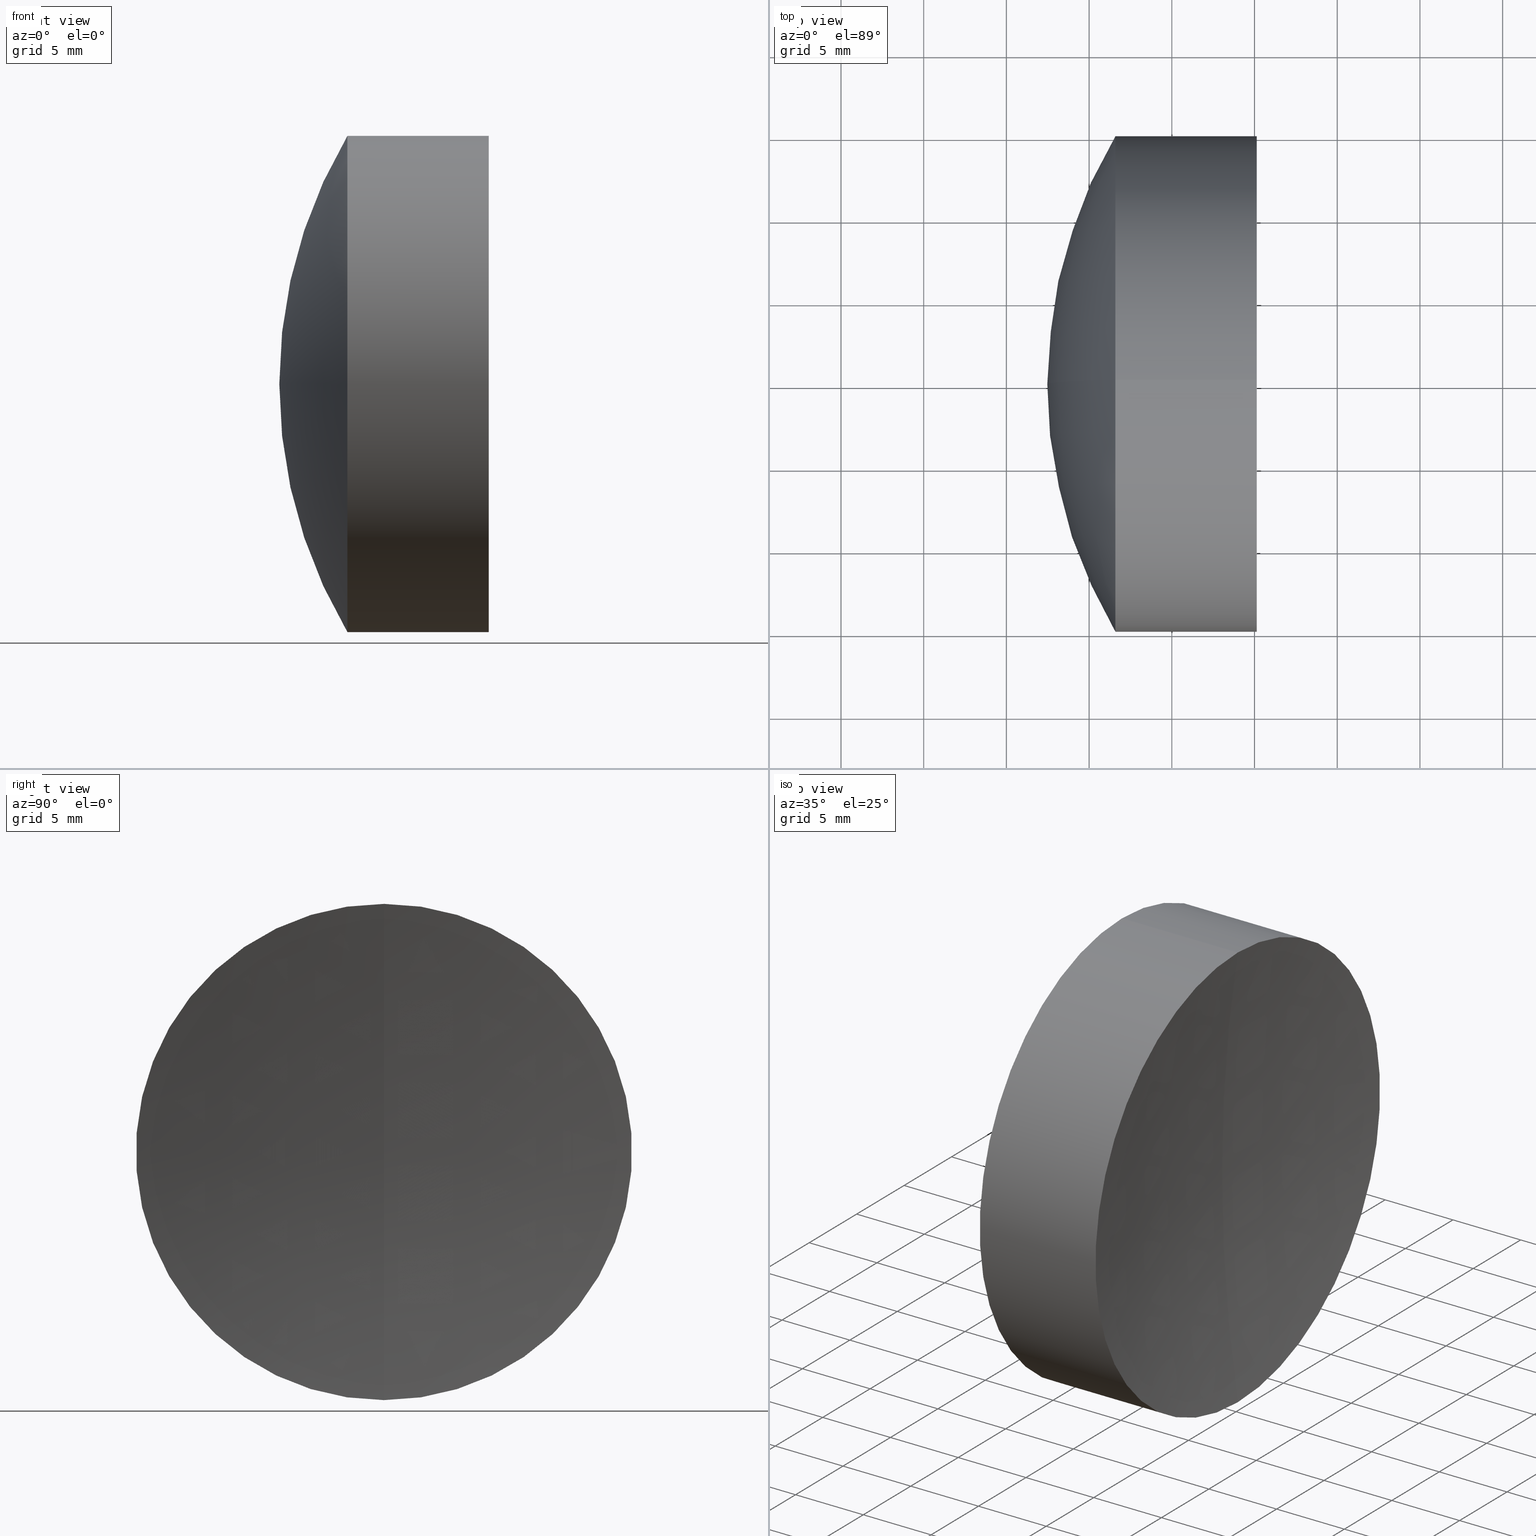
[diagram: canonical four-view strip — front | top / right | iso, engineering-drawing reading convention]
A machine part, canonical four-view strip (front | top / right | iso — engineering-drawing reading convention). The complete STEP part file that produces these views, byte-faithful:
ISO-10303-21;
HEADER;
FILE_DESCRIPTION (( 'STEP AP214' ),
    '1' );
FILE_NAME ('145174.STEP',
    '2019-06-12T02:23:38',
    ( 'user' ),
    ( '΢���й�' ),
    'SwSTEP 2.0',
    'SolidWorks 2016',
    '' );
FILE_SCHEMA (( 'AUTOMOTIVE_DESIGN' ));
ENDSEC;

DATA;
#1 =( GEOMETRIC_REPRESENTATION_CONTEXT ( 3 ) GLOBAL_UNCERTAINTY_ASSIGNED_CONTEXT ( ( #223 ) ) GLOBAL_UNIT_ASSIGNED_CONTEXT ( ( #302, #163, #98 ) ) REPRESENTATION_CONTEXT ( 'NONE', 'WORKASPACE' ) );
#2 = FILL_AREA_STYLE ('',( #100 ) ) ;
#3 = CARTESIAN_POINT ( 'NONE',  ( 68.06296674873206600, 0.0000000000000000000, 0.0000000000000000000 ) ) ;
#4 = ORIENTED_EDGE ( 'NONE', *, *, #94, .F. ) ;
#5 =( NAMED_UNIT ( * ) PLANE_ANGLE_UNIT ( ) SI_UNIT ( $, .RADIAN. ) );
#6 = EDGE_CURVE ( 'NONE', #261, #341, #16, .T. ) ;
#7 = ADVANCED_BREP_SHAPE_REPRESENTATION ( '145174', ( #316, #32, #246 ), #138 ) ;
#8 = ORIENTED_EDGE ( 'NONE', *, *, #79, .T. ) ;
#9 = CARTESIAN_POINT ( 'NONE',  ( 201.6929667487320900, 0.0000000000000000000, 0.0000000000000000000 ) ) ;
#10 = DIRECTION ( 'NONE',  ( 0.0000000000000000000, 1.224646799147353200E-016, -1.000000000000000000 ) ) ;
#11 = CARTESIAN_POINT ( 'NONE',  ( 105.1310777862640600, 0.0000000000000000000, -14.99999999999993600 ) ) ;
#12 = ORIENTED_EDGE ( 'NONE', *, *, #174, .T. ) ;
#13 = ORIENTED_EDGE ( 'NONE', *, *, #81, .T. ) ;
#14 = AXIS2_PLACEMENT_3D ( 'NONE', #9, #147, #10 ) ;
#15 =( NAMED_UNIT ( * ) SI_UNIT ( $, .STERADIAN. ) SOLID_ANGLE_UNIT ( ) );
#16 = LINE ( 'NONE', #304, #155 ) ;
#17 = CARTESIAN_POINT ( 'NONE',  ( 201.6929667487320900, 0.0000000000000000000, 0.0000000000000000000 ) ) ;
#18 = AXIS2_PLACEMENT_3D ( 'NONE', #256, #271, #301 ) ;
#19 = ORIENTED_EDGE ( 'NONE', *, *, #24, .T. ) ;
#20 = FACE_OUTER_BOUND ( 'NONE', #101, .T. ) ;
#21 = DIRECTION ( 'NONE',  ( -1.000000000000000000, -0.0000000000000000000, -0.0000000000000000000 ) ) ;
#22 = DIRECTION ( 'NONE',  ( 0.0000000000000000000, 0.0000000000000000000, 1.000000000000000000 ) ) ;
#23 = AXIS2_PLACEMENT_3D ( 'NONE', #227, #240, #153 ) ;
#24 = EDGE_CURVE ( 'NONE', #192, #129, #82, .T. ) ;
#25 = ADVANCED_FACE ( 'NONE', ( #293 ), #228, .F. ) ;
#26 = AXIS2_PLACEMENT_3D ( 'NONE', #3, #198, #270 ) ;
#27 = SURFACE_STYLE_FILL_AREA ( #28 ) ;
#28 = FILL_AREA_STYLE ('',( #222 ) ) ;
#29 = CIRCLE ( 'NONE', #290, 33.91000000000001100 ) ;
#30 = ORIENTED_EDGE ( 'NONE', *, *, #65, .F. ) ;
#31 =( NAMED_UNIT ( * ) PLANE_ANGLE_UNIT ( ) SI_UNIT ( $, .RADIAN. ) );
#32 = MANIFOLD_SOLID_BREP ( '��ת2', #115 ) ;
#33 = CARTESIAN_POINT ( 'NONE',  ( -0.8160621761658039000, 0.0000000000000000000, 0.0000000000000000000 ) ) ;
#34 = AXIS2_PLACEMENT_3D ( 'NONE', #73, #176, #180 ) ;
#35 = DIRECTION ( 'NONE',  ( 0.0000000000000000000, 1.000000000000000000, -0.0000000000000000000 ) ) ;
#36 = DIRECTION ( 'NONE',  ( 0.0000000000000000000, 0.0000000000000000000, 1.000000000000000000 ) ) ;
#37 = ORIENTED_EDGE ( 'NONE', *, *, #181, .T. ) ;
#38 = DIRECTION ( 'NONE',  ( -1.000000000000000000, -0.0000000000000000000, -0.0000000000000000000 ) ) ;
#39 = ADVANCED_FACE ( 'NONE', ( #158 ), #166, .T. ) ;
#40 = SPHERICAL_SURFACE ( 'NONE', #285, 29.38000000000000300 ) ;
#41 = AXIS2_PLACEMENT_3D ( 'NONE', #33, #38, #22 ) ;
#42 = ORIENTED_EDGE ( 'NONE', *, *, #262, .F. ) ;
#43 = DIRECTION ( 'NONE',  ( -1.000000000000000000, -0.0000000000000000000, -0.0000000000000000000 ) ) ;
#44 = DIRECTION ( 'NONE',  ( 0.0000000000000000000, 0.0000000000000000000, 1.000000000000000000 ) ) ;
#45 = ORIENTED_EDGE ( 'NONE', *, *, #322, .T. ) ;
#46 = AXIS2_PLACEMENT_3D ( 'NONE', #226, #252, #309 ) ;
#47 = AXIS2_PLACEMENT_3D ( 'NONE', #272, #86, #154 ) ;
#48 = CLOSED_SHELL ( 'NONE', ( #337, #204, #244, #187, #332, #52 ) ) ;
#49 = ORIENTED_EDGE ( 'NONE', *, *, #24, .F. ) ;
#50 = DIRECTION ( 'NONE',  ( 0.0000000000000000000, 0.0000000000000000000, 1.000000000000000000 ) ) ;
#51 = AXIS2_PLACEMENT_3D ( 'NONE', #308, #58, #50 ) ;
#52 = ADVANCED_FACE ( 'NONE', ( #92 ), #105, .T. ) ;
#53 = CIRCLE ( 'NONE', #342, 14.99999999999999600 ) ;
#54 = CARTESIAN_POINT ( 'NONE',  ( -0.5519199926577972300, 0.0000000000000000000, 15.00000000000000000 ) ) ;
#55 = EDGE_LOOP ( 'NONE', ( #215, #49, #37 ) ) ;
#56 = DIRECTION ( 'NONE',  ( 0.0000000000000000000, -1.000000000000000000, 0.0000000000000000000 ) ) ;
#57 = AXIS2_PLACEMENT_3D ( 'NONE', #132, #232, #277 ) ;
#58 = DIRECTION ( 'NONE',  ( -1.000000000000000000, -0.0000000000000000000, -0.0000000000000000000 ) ) ;
#59 = CARTESIAN_POINT ( 'NONE',  ( 96.59065489886367600, 0.0000000000000000000, 14.99999999999999300 ) ) ;
#60 = CARTESIAN_POINT ( 'NONE',  ( 98.47493971991563900, 0.0000000000000000000, -15.00000000000000700 ) ) ;
#61 = ORIENTED_EDGE ( 'NONE', *, *, #300, .F. ) ;
#62 = CARTESIAN_POINT ( 'NONE',  ( 121.8529667487320600, 0.0000000000000000000, -2.769782849418513800E-015 ) ) ;
#63 = SURFACE_STYLE_USAGE ( .BOTH. , #194 ) ;
#64 = CARTESIAN_POINT ( 'NONE',  ( 101.9729667487320800, 0.0000000000000000000, -2.076388647954338200E-015 ) ) ;
#65 = EDGE_CURVE ( 'NONE', #261, #191, #283, .T. ) ;
#66 = FACE_OUTER_BOUND ( 'NONE', #183, .T. ) ;
#67 = DIRECTION ( 'NONE',  ( 0.0000000000000000000, 0.0000000000000000000, 1.000000000000000000 ) ) ;
#68 = DIRECTION ( 'NONE',  ( 0.0000000000000000000, 1.000000000000000000, 0.0000000000000000000 ) ) ;
#69 = CIRCLE ( 'NONE', #14, 97.71999999999999900 ) ;
#70 = DIRECTION ( 'NONE',  ( 0.0000000000000000000, 0.0000000000000000000, 1.000000000000000000 ) ) ;
#71 = ORIENTED_EDGE ( 'NONE', *, *, #255, .T. ) ;
#72 = STYLED_ITEM ( 'NONE', ( #344 ), #316 ) ;
#73 = CARTESIAN_POINT ( 'NONE',  ( 121.8529667487320600, 0.0000000000000000000, -2.769782849418513800E-015 ) ) ;
#74 = SPHERICAL_SURFACE ( 'NONE', #320, 97.71999999999999900 ) ;
#75 = ORIENTED_EDGE ( 'NONE', *, *, #6, .T. ) ;
#76 = MECHANICAL_DESIGN_GEOMETRIC_PRESENTATION_REPRESENTATION (  '', ( #72 ), #116 ) ;
#77 = DIRECTION ( 'NONE',  ( -0.0000000000000000000, -1.000000000000000000, -0.0000000000000000000 ) ) ;
#78 = DIRECTION ( 'NONE',  ( 0.0000000000000000000, 1.000000000000000000, 0.0000000000000000000 ) ) ;
#79 = EDGE_CURVE ( 'NONE', #143, #149, #29, .T. ) ;
#80 = ADVANCED_FACE ( 'NONE', ( #20 ), #137, .F. ) ;
#81 = EDGE_CURVE ( 'NONE', #179, #341, #53, .T. ) ;
#82 = CIRCLE ( 'NONE', #197, 15.00000000000000200 ) ;
#83 = CYLINDRICAL_SURFACE ( 'NONE', #41, 14.99999999999999800 ) ;
#84 = DIRECTION ( 'NONE',  ( 1.000000000000000000, 0.0000000000000000000, 0.0000000000000000000 ) ) ;
#85 = PRESENTATION_LAYER_ASSIGNMENT (  '', '', ( #157 ) ) ;
#86 = DIRECTION ( 'NONE',  ( -1.000000000000000000, -0.0000000000000000000, -0.0000000000000000000 ) ) ;
#87 = CIRCLE ( 'NONE', #108, 33.91000000000000400 ) ;
#88 = EDGE_LOOP ( 'NONE', ( #241, #287, #263, #284 ) ) ;
#89 = PRESENTATION_LAYER_ASSIGNMENT (  '', '', ( #72 ) ) ;
#90 = CARTESIAN_POINT ( 'NONE',  ( 201.6929667487320900, 0.0000000000000000000, 0.0000000000000000000 ) ) ;
#91 = CARTESIAN_POINT ( 'NONE',  ( 68.06296674873206600, 0.0000000000000000000, 0.0000000000000000000 ) ) ;
#92 = FACE_OUTER_BOUND ( 'NONE', #303, .T. ) ;
#93 = CARTESIAN_POINT ( 'NONE',  ( 105.1310777862640600, 0.0000000000000000000, 0.0000000000000000000 ) ) ;
#94 = EDGE_CURVE ( 'NONE', #192, #230, #219, .T. ) ;
#95 = ORIENTED_EDGE ( 'NONE', *, *, #279, .T. ) ;
#96 = ORIENTED_EDGE ( 'NONE', *, *, #94, .T. ) ;
#97 =( NAMED_UNIT ( * ) PLANE_ANGLE_UNIT ( ) SI_UNIT ( $, .RADIAN. ) );
#98 =( NAMED_UNIT ( * ) SI_UNIT ( $, .STERADIAN. ) SOLID_ANGLE_UNIT ( ) );
#99 = SURFACE_STYLE_FILL_AREA ( #182 ) ;
#100 = FILL_AREA_STYLE_COLOUR ( '', #286 ) ;
#101 = EDGE_LOOP ( 'NONE', ( #128, #12, #71 ) ) ;
#102 = EDGE_CURVE ( 'NONE', #341, #179, #326, .T. ) ;
#103 = EDGE_CURVE ( 'NONE', #179, #119, #268, .T. ) ;
#104 = CYLINDRICAL_SURFACE ( 'NONE', #130, 14.99999999999999800 ) ;
#105 = SPHERICAL_SURFACE ( 'NONE', #324, 33.91000000000000400 ) ;
#106 = DIRECTION ( 'NONE',  ( -1.000000000000000000, -0.0000000000000000000, -0.0000000000000000000 ) ) ;
#107 = SURFACE_STYLE_USAGE ( .BOTH. , #243 ) ;
#108 = AXIS2_PLACEMENT_3D ( 'NONE', #190, #253, #323 ) ;
#109 = ADVANCED_FACE ( 'NONE', ( #66 ), #74, .F. ) ;
#110 = CARTESIAN_POINT ( 'NONE',  ( 96.59065489886367600, 1.836970198721028800E-015, -14.99999999999999600 ) ) ;
#111 = CARTESIAN_POINT ( 'NONE',  ( 68.06296674873206600, 0.0000000000000000000, 0.0000000000000000000 ) ) ;
#112 = APPLICATION_CONTEXT ( 'automotive_design' ) ;
#113 = DIRECTION ( 'NONE',  ( 0.0000000000000000000, 0.0000000000000000000, -1.000000000000000000 ) ) ;
#114 = ORIENTED_EDGE ( 'NONE', *, *, #229, .F. ) ;
#115 = CLOSED_SHELL ( 'NONE', ( #39, #109, #265, #80, #25, #161 ) ) ;
#116 =( GEOMETRIC_REPRESENTATION_CONTEXT ( 3 ) GLOBAL_UNCERTAINTY_ASSIGNED_CONTEXT ( ( #319 ) ) GLOBAL_UNIT_ASSIGNED_CONTEXT ( ( #247, #97, #238 ) ) REPRESENTATION_CONTEXT ( 'NONE', 'WORKASPACE' ) );
#117 = DIRECTION ( 'NONE',  ( 0.0000000000000000000, 0.0000000000000000000, 1.000000000000000000 ) ) ;
#118 = DIRECTION ( 'NONE',  ( 0.0000000000000000000, 1.224646799147353200E-016, -1.000000000000000000 ) ) ;
#119 = VERTEX_POINT ( 'NONE', #214 ) ;
#120 = CARTESIAN_POINT ( 'NONE',  ( 68.06296674873206600, 0.0000000000000000000, 0.0000000000000000000 ) ) ;
#121 = AXIS2_PLACEMENT_3D ( 'NONE', #206, #217, #218 ) ;
#122 = VERTEX_POINT ( 'NONE', #199 ) ;
#123 = DIRECTION ( 'NONE',  ( -1.000000000000000000, -0.0000000000000000000, -0.0000000000000000000 ) ) ;
#124 = FACE_OUTER_BOUND ( 'NONE', #239, .T. ) ;
#125 = DIRECTION ( 'NONE',  ( -0.0000000000000000000, 1.000000000000000000, 1.224646799147353200E-016 ) ) ;
#126 = DIRECTION ( 'NONE',  ( 0.0000000000000000000, -1.224646799147353200E-016, 1.000000000000000000 ) ) ;
#127 = AXIS2_PLACEMENT_3D ( 'NONE', #141, #68, #139 ) ;
#128 = ORIENTED_EDGE ( 'NONE', *, *, #79, .F. ) ;
#129 = VERTEX_POINT ( 'NONE', #146 ) ;
#130 = AXIS2_PLACEMENT_3D ( 'NONE', #193, #162, #44 ) ;
#131 = SPHERICAL_SURFACE ( 'NONE', #46, 33.91000000000001100 ) ;
#132 = CARTESIAN_POINT ( 'NONE',  ( 121.8529667487320600, 0.0000000000000000000, -2.769782849418513800E-015 ) ) ;
#133 = CYLINDRICAL_SURFACE ( 'NONE', #333, 15.00000000000000000 ) ;
#134 = ORIENTED_EDGE ( 'NONE', *, *, #210, .T. ) ;
#135 = PRODUCT_DEFINITION_SHAPE ( 'NONE', 'NONE',  #205 ) ;
#136 = DIRECTION ( 'NONE',  ( -1.000000000000000000, -0.0000000000000000000, -0.0000000000000000000 ) ) ;
#137 = SPHERICAL_SURFACE ( 'NONE', #312, 33.91000000000001100 ) ;
#138 =( GEOMETRIC_REPRESENTATION_CONTEXT ( 3 ) GLOBAL_UNCERTAINTY_ASSIGNED_CONTEXT ( ( #325 ) ) GLOBAL_UNIT_ASSIGNED_CONTEXT ( ( #242, #5, #15 ) ) REPRESENTATION_CONTEXT ( 'NONE', 'WORKASPACE' ) );
#139 = DIRECTION ( 'NONE',  ( 0.0000000000000000000, 0.0000000000000000000, 1.000000000000000000 ) ) ;
#140 = PRESENTATION_STYLE_ASSIGNMENT (( #63 ) ) ;
#141 = CARTESIAN_POINT ( 'NONE',  ( 68.06296674873206600, 0.0000000000000000000, 0.0000000000000000000 ) ) ;
#142 = COLOUR_RGB ( '',1.000000000000000000, 1.000000000000000000, 1.000000000000000000 ) ;
#143 = VERTEX_POINT ( 'NONE', #64 ) ;
#144 = STYLED_ITEM ( 'NONE', ( #336 ), #7 ) ;
#145 = DIRECTION ( 'NONE',  ( 0.0000000000000000000, 1.000000000000000000, 0.0000000000000000000 ) ) ;
#146 = CARTESIAN_POINT ( 'NONE',  ( 105.1310777862640600, -1.836970198721021700E-015, 14.99999999999993600 ) ) ;
#147 = DIRECTION ( 'NONE',  ( 0.0000000000000000000, -1.000000000000000000, -1.224646799147353200E-016 ) ) ;
#148 = ORIENTED_EDGE ( 'NONE', *, *, #102, .T. ) ;
#149 = VERTEX_POINT ( 'NONE', #234 ) ;
#150 = EDGE_CURVE ( 'NONE', #129, #192, #340, .T. ) ;
#151 = DIRECTION ( 'NONE',  ( 0.0000000000000000000, 0.0000000000000000000, 1.000000000000000000 ) ) ;
#152 = ORIENTED_EDGE ( 'NONE', *, *, #103, .F. ) ;
#153 = DIRECTION ( 'NONE',  ( 0.0000000000000000000, 0.0000000000000000000, 1.000000000000000000 ) ) ;
#154 = DIRECTION ( 'NONE',  ( 0.0000000000000000000, 0.0000000000000000000, 1.000000000000000000 ) ) ;
#155 = VECTOR ( 'NONE', #237, 1000.000000000000000 ) ;
#156 = ORIENTED_EDGE ( 'NONE', *, *, #181, .F. ) ;
#157 = STYLED_ITEM ( 'NONE', ( #140 ), #32 ) ;
#158 = FACE_OUTER_BOUND ( 'NONE', #225, .T. ) ;
#159 =( NAMED_UNIT ( * ) SI_UNIT ( $, .STERADIAN. ) SOLID_ANGLE_UNIT ( ) );
#160 = MECHANICAL_DESIGN_GEOMETRIC_PRESENTATION_REPRESENTATION (  '', ( #144 ), #231 ) ;
#161 = ADVANCED_FACE ( 'NONE', ( #124 ), #133, .T. ) ;
#162 = DIRECTION ( 'NONE',  ( -1.000000000000000000, -0.0000000000000000000, -0.0000000000000000000 ) ) ;
#163 =( NAMED_UNIT ( * ) PLANE_ANGLE_UNIT ( ) SI_UNIT ( $, .RADIAN. ) );
#164 = CARTESIAN_POINT ( 'NONE',  ( 68.06296674873206600, 0.0000000000000000000, 0.0000000000000000000 ) ) ;
#165 = SURFACE_STYLE_USAGE ( .BOTH. , #331 ) ;
#166 = CYLINDRICAL_SURFACE ( 'NONE', #185, 15.00000000000000000 ) ;
#167 = PRESENTATION_LAYER_ASSIGNMENT (  '', '', ( #144 ) ) ;
#168 = DIRECTION ( 'NONE',  ( -1.000000000000000000, -0.0000000000000000000, -0.0000000000000000000 ) ) ;
#169 = CIRCLE ( 'NONE', #26, 33.91000000000001100 ) ;
#170 = DIRECTION ( 'NONE',  ( 0.0000000000000000000, 0.0000000000000000000, -1.000000000000000000 ) ) ;
#171 = DIRECTION ( 'NONE',  ( -1.000000000000000000, -0.0000000000000000000, -0.0000000000000000000 ) ) ;
#172 = CARTESIAN_POINT ( 'NONE',  ( 96.59065489886367600, 0.0000000000000000000, 0.0000000000000000000 ) ) ;
#173 = CARTESIAN_POINT ( 'NONE',  ( 98.47493971991563900, 1.836970198721030000E-015, -15.00000000000000200 ) ) ;
#174 = EDGE_CURVE ( 'NONE', #143, #230, #169, .T. ) ;
#175 = MECHANICAL_DESIGN_GEOMETRIC_PRESENTATION_REPRESENTATION (  '', ( #157 ), #1 ) ;
#176 = DIRECTION ( 'NONE',  ( 0.0000000000000000000, 1.000000000000000000, 0.0000000000000000000 ) ) ;
#177 = FACE_OUTER_BOUND ( 'NONE', #88, .T. ) ;
#178 = DIRECTION ( 'NONE',  ( 0.0000000000000000000, 0.0000000000000000000, -1.000000000000000000 ) ) ;
#179 = VERTEX_POINT ( 'NONE', #59 ) ;
#180 = DIRECTION ( 'NONE',  ( 0.0000000000000000000, 0.0000000000000000000, 1.000000000000000000 ) ) ;
#181 = EDGE_CURVE ( 'NONE', #192, #122, #291, .T. ) ;
#182 = FILL_AREA_STYLE ('',( #305 ) ) ;
#183 = EDGE_LOOP ( 'NONE', ( #208, #346, #156 ) ) ;
#184 = VECTOR ( 'NONE', #21, 1000.000000000000000 ) ;
#185 = AXIS2_PLACEMENT_3D ( 'NONE', #188, #168, #36 ) ;
#186 = ORIENTED_EDGE ( 'NONE', *, *, #150, .T. ) ;
#187 = ADVANCED_FACE ( 'NONE', ( #296 ), #40, .T. ) ;
#188 = CARTESIAN_POINT ( 'NONE',  ( -0.5519199926577972300, 0.0000000000000000000, 0.0000000000000000000 ) ) ;
#189 = AXIS2_PLACEMENT_3D ( 'NONE', #172, #171, #251 ) ;
#190 = CARTESIAN_POINT ( 'NONE',  ( 68.06296674873206600, 0.0000000000000000000, 0.0000000000000000000 ) ) ;
#191 = VERTEX_POINT ( 'NONE', #249 ) ;
#192 = VERTEX_POINT ( 'NONE', #11 ) ;
#193 = CARTESIAN_POINT ( 'NONE',  ( -0.8160621761658039000, 0.0000000000000000000, 0.0000000000000000000 ) ) ;
#194 = SURFACE_SIDE_STYLE ('',( #313 ) ) ;
#195 = DIRECTION ( 'NONE',  ( 0.0000000000000000000, 0.0000000000000000000, 1.000000000000000000 ) ) ;
#196 = CIRCLE ( 'NONE', #18, 15.00000000000000000 ) ;
#197 = AXIS2_PLACEMENT_3D ( 'NONE', #93, #123, #67 ) ;
#198 = DIRECTION ( 'NONE',  ( 0.0000000000000000000, 1.000000000000000000, -0.0000000000000000000 ) ) ;
#199 = CARTESIAN_POINT ( 'NONE',  ( 103.9729667487320800, 0.0000000000000000000, -5.983624260633968100E-015 ) ) ;
#200 = DIRECTION ( 'NONE',  ( 0.0000000000000000000, 0.0000000000000000000, 1.000000000000000000 ) ) ;
#201 = CIRCLE ( 'NONE', #121, 15.00000000000000000 ) ;
#202 = ORIENTED_EDGE ( 'NONE', *, *, #262, .T. ) ;
#203 = VECTOR ( 'NONE', #282, 1000.000000000000000 ) ;
#204 = ADVANCED_FACE ( 'NONE', ( #233 ), #83, .T. ) ;
#205 = PRODUCT_DEFINITION ( 'δ֪', '', #216, #338 ) ;
#206 = CARTESIAN_POINT ( 'NONE',  ( 98.47493971991563900, 0.0000000000000000000, 0.0000000000000000000 ) ) ;
#207 = ORIENTED_EDGE ( 'NONE', *, *, #210, .F. ) ;
#208 = ORIENTED_EDGE ( 'NONE', *, *, #150, .F. ) ;
#209 = ORIENTED_EDGE ( 'NONE', *, *, #279, .F. ) ;
#210 = EDGE_CURVE ( 'NONE', #129, #149, #269, .T. ) ;
#211 = LINE ( 'NONE', #347, #203 ) ;
#212 = DIRECTION ( 'NONE',  ( -0.0000000000000000000, -1.000000000000000000, -0.0000000000000000000 ) ) ;
#213 = APPLICATION_CONTEXT ( 'automotive_design' ) ;
#214 = CARTESIAN_POINT ( 'NONE',  ( 92.47296674873204800, 0.0000000000000000000, -9.707767014710518100E-016 ) ) ;
#215 = ORIENTED_EDGE ( 'NONE', *, *, #275, .F. ) ;
#216 = PRODUCT_DEFINITION_FORMATION_WITH_SPECIFIED_SOURCE ( '�κ�', '', #259, .NOT_KNOWN. ) ;
#217 = DIRECTION ( 'NONE',  ( -1.000000000000000000, -0.0000000000000000000, -0.0000000000000000000 ) ) ;
#218 = DIRECTION ( 'NONE',  ( 0.0000000000000000000, 0.0000000000000000000, 1.000000000000000000 ) ) ;
#219 = LINE ( 'NONE', #288, #184 ) ;
#220 = ORIENTED_EDGE ( 'NONE', *, *, #257, .T. ) ;
#221 = CARTESIAN_POINT ( 'NONE',  ( 201.6929667487320900, 0.0000000000000000000, 0.0000000000000000000 ) ) ;
#222 = FILL_AREA_STYLE_COLOUR ( '', #142 ) ;
#223 = UNCERTAINTY_MEASURE_WITH_UNIT (LENGTH_MEASURE( 1.000000000000000100E-005 ), #302, 'distance_accuracy_value', 'NONE');
#224 = APPLICATION_PROTOCOL_DEFINITION ( 'draft international standard', 'automotive_design', 1998, #213 ) ;
#225 = EDGE_LOOP ( 'NONE', ( #186, #96, #42, #207 ) ) ;
#226 = CARTESIAN_POINT ( 'NONE',  ( 68.06296674873206600, 0.0000000000000000000, 0.0000000000000000000 ) ) ;
#227 = CARTESIAN_POINT ( 'NONE',  ( 98.47493971991563900, 0.0000000000000000000, 0.0000000000000000000 ) ) ;
#228 = SPHERICAL_SURFACE ( 'NONE', #328, 97.71999999999999900 ) ;
#229 = EDGE_CURVE ( 'NONE', #235, #261, #335, .T. ) ;
#230 = VERTEX_POINT ( 'NONE', #60 ) ;
#231 =( GEOMETRIC_REPRESENTATION_CONTEXT ( 3 ) GLOBAL_UNCERTAINTY_ASSIGNED_CONTEXT ( ( #281 ) ) GLOBAL_UNIT_ASSIGNED_CONTEXT ( ( #343, #31, #159 ) ) REPRESENTATION_CONTEXT ( 'NONE', 'WORKASPACE' ) );
#232 = DIRECTION ( 'NONE',  ( -0.0000000000000000000, 1.000000000000000000, 1.224646799147353200E-016 ) ) ;
#233 = FACE_OUTER_BOUND ( 'NONE', #318, .T. ) ;
#234 = CARTESIAN_POINT ( 'NONE',  ( 98.47493971991563900, -1.836970198721030400E-015, 15.00000000000000700 ) ) ;
#235 = VERTEX_POINT ( 'NONE', #258 ) ;
#236 = PRODUCT_RELATED_PRODUCT_CATEGORY ( 'part', '', ( #259 ) ) ;
#237 = DIRECTION ( 'NONE',  ( -1.000000000000000000, -0.0000000000000000000, -0.0000000000000000000 ) ) ;
#238 =( NAMED_UNIT ( * ) SI_UNIT ( $, .STERADIAN. ) SOLID_ANGLE_UNIT ( ) );
#239 = EDGE_LOOP ( 'NONE', ( #4, #19, #134, #307 ) ) ;
#240 = DIRECTION ( 'NONE',  ( -1.000000000000000000, -0.0000000000000000000, -0.0000000000000000000 ) ) ;
#241 = ORIENTED_EDGE ( 'NONE', *, *, #6, .F. ) ;
#242 =( LENGTH_UNIT ( ) NAMED_UNIT ( * ) SI_UNIT ( .MILLI., .METRE. ) );
#243 = SURFACE_SIDE_STYLE ('',( #27 ) ) ;
#244 = ADVANCED_FACE ( 'NONE', ( #314 ), #329, .T. ) ;
#245 = ORIENTED_EDGE ( 'NONE', *, *, #81, .F. ) ;
#246 = AXIS2_PLACEMENT_3D ( 'NONE', #260, #117, #84 ) ;
#247 =( LENGTH_UNIT ( ) NAMED_UNIT ( * ) SI_UNIT ( .MILLI., .METRE. ) );
#248 = EDGE_LOOP ( 'NONE', ( #209, #148, #266 ) ) ;
#249 = CARTESIAN_POINT ( 'NONE',  ( 98.47493971991563900, 0.0000000000000000000, 15.00000000000000000 ) ) ;
#250 = DIRECTION ( 'NONE',  ( 0.0000000000000000000, 0.0000000000000000000, 1.000000000000000000 ) ) ;
#251 = DIRECTION ( 'NONE',  ( 0.0000000000000000000, 0.0000000000000000000, 1.000000000000000000 ) ) ;
#252 = DIRECTION ( 'NONE',  ( -0.0000000000000000000, -1.000000000000000000, -0.0000000000000000000 ) ) ;
#253 = DIRECTION ( 'NONE',  ( 0.0000000000000000000, -1.000000000000000000, 0.0000000000000000000 ) ) ;
#254 = EDGE_LOOP ( 'NONE', ( #276, #289, #278 ) ) ;
#255 = EDGE_CURVE ( 'NONE', #230, #149, #201, .T. ) ;
#256 = CARTESIAN_POINT ( 'NONE',  ( 98.47493971991563900, 0.0000000000000000000, 0.0000000000000000000 ) ) ;
#257 = EDGE_CURVE ( 'NONE', #191, #261, #345, .T. ) ;
#258 = CARTESIAN_POINT ( 'NONE',  ( 101.9729667487320800, 0.0000000000000000000, 2.076388647954337400E-015 ) ) ;
#259 = PRODUCT ( '145174', '145174', '', ( #294 ) ) ;
#260 = CARTESIAN_POINT ( 'NONE',  ( 0.0000000000000000000, 0.0000000000000000000, 0.0000000000000000000 ) ) ;
#261 = VERTEX_POINT ( 'NONE', #173 ) ;
#262 = EDGE_CURVE ( 'NONE', #149, #230, #196, .T. ) ;
#263 = ORIENTED_EDGE ( 'NONE', *, *, #300, .T. ) ;
#264 = CARTESIAN_POINT ( 'NONE',  ( 121.8529667487320600, 0.0000000000000000000, -2.769782849418513800E-015 ) ) ;
#265 = ADVANCED_FACE ( 'NONE', ( #297 ), #131, .F. ) ;
#266 = ORIENTED_EDGE ( 'NONE', *, *, #103, .T. ) ;
#267 = APPLICATION_PROTOCOL_DEFINITION ( 'draft international standard', 'automotive_design', 1998, #112 ) ;
#268 = CIRCLE ( 'NONE', #295, 29.38000000000000300 ) ;
#269 = LINE ( 'NONE', #54, #327 ) ;
#270 = DIRECTION ( 'NONE',  ( 0.0000000000000000000, 0.0000000000000000000, 1.000000000000000000 ) ) ;
#271 = DIRECTION ( 'NONE',  ( -1.000000000000000000, -0.0000000000000000000, -0.0000000000000000000 ) ) ;
#272 = CARTESIAN_POINT ( 'NONE',  ( 105.1310777862640600, 0.0000000000000000000, 0.0000000000000000000 ) ) ;
#273 = CARTESIAN_POINT ( 'NONE',  ( -0.5519199926577972300, 0.0000000000000000000, 0.0000000000000000000 ) ) ;
#274 = CIRCLE ( 'NONE', #57, 29.38000000000000300 ) ;
#275 = EDGE_CURVE ( 'NONE', #129, #122, #69, .T. ) ;
#276 = ORIENTED_EDGE ( 'NONE', *, *, #322, .F. ) ;
#277 = DIRECTION ( 'NONE',  ( 0.0000000000000000000, -1.224646799147353200E-016, 1.000000000000000000 ) ) ;
#278 = ORIENTED_EDGE ( 'NONE', *, *, #257, .F. ) ;
#279 = EDGE_CURVE ( 'NONE', #341, #119, #274, .T. ) ;
#280 = DIRECTION ( 'NONE',  ( 0.0000000000000000000, 0.0000000000000000000, -1.000000000000000000 ) ) ;
#281 = UNCERTAINTY_MEASURE_WITH_UNIT (LENGTH_MEASURE( 1.000000000000000100E-005 ), #343, 'distance_accuracy_value', 'NONE');
#282 = DIRECTION ( 'NONE',  ( -1.000000000000000000, -0.0000000000000000000, -0.0000000000000000000 ) ) ;
#283 = CIRCLE ( 'NONE', #51, 15.00000000000000000 ) ;
#284 = ORIENTED_EDGE ( 'NONE', *, *, #102, .F. ) ;
#285 = AXIS2_PLACEMENT_3D ( 'NONE', #62, #78, #70 ) ;
#286 = COLOUR_RGB ( '',1.000000000000000000, 1.000000000000000000, 1.000000000000000000 ) ;
#287 = ORIENTED_EDGE ( 'NONE', *, *, #65, .T. ) ;
#288 = CARTESIAN_POINT ( 'NONE',  ( -0.5519199926577972300, 1.836970198721029600E-015, -15.00000000000000000 ) ) ;
#289 = ORIENTED_EDGE ( 'NONE', *, *, #229, .T. ) ;
#290 = AXIS2_PLACEMENT_3D ( 'NONE', #164, #298, #118 ) ;
#291 = CIRCLE ( 'NONE', #330, 97.71999999999999900 ) ;
#292 = DIRECTION ( 'NONE',  ( -0.0000000000000000000, -1.000000000000000000, -0.0000000000000000000 ) ) ;
#293 = FACE_OUTER_BOUND ( 'NONE', #55, .T. ) ;
#294 = PRODUCT_CONTEXT ( 'NONE', #213, 'mechanical' ) ;
#295 = AXIS2_PLACEMENT_3D ( 'NONE', #264, #56, #170 ) ;
#296 = FACE_OUTER_BOUND ( 'NONE', #248, .T. ) ;
#297 = FACE_OUTER_BOUND ( 'NONE', #310, .T. ) ;
#298 = DIRECTION ( 'NONE',  ( 0.0000000000000000000, -1.000000000000000000, -1.224646799147353200E-016 ) ) ;
#299 = COLOUR_RGB ( '',1.000000000000000000, 1.000000000000000000, 1.000000000000000000 ) ;
#300 = EDGE_CURVE ( 'NONE', #191, #179, #211, .T. ) ;
#301 = DIRECTION ( 'NONE',  ( 0.0000000000000000000, 0.0000000000000000000, 1.000000000000000000 ) ) ;
#302 =( LENGTH_UNIT ( ) NAMED_UNIT ( * ) SI_UNIT ( .MILLI., .METRE. ) );
#303 = EDGE_LOOP ( 'NONE', ( #114, #45, #30 ) ) ;
#304 = CARTESIAN_POINT ( 'NONE',  ( -0.8160621761658039000, 1.836970198721029600E-015, -14.99999999999999800 ) ) ;
#305 = FILL_AREA_STYLE_COLOUR ( '', #299 ) ;
#306 = SPHERICAL_SURFACE ( 'NONE', #127, 33.91000000000000400 ) ;
#307 = ORIENTED_EDGE ( 'NONE', *, *, #255, .F. ) ;
#308 = CARTESIAN_POINT ( 'NONE',  ( 98.47493971991563900, 0.0000000000000000000, 0.0000000000000000000 ) ) ;
#309 = DIRECTION ( 'NONE',  ( 0.0000000000000000000, 0.0000000000000000000, -1.000000000000000000 ) ) ;
#310 = EDGE_LOOP ( 'NONE', ( #334, #8, #202 ) ) ;
#311 = FACE_OUTER_BOUND ( 'NONE', #254, .T. ) ;
#312 = AXIS2_PLACEMENT_3D ( 'NONE', #120, #292, #113 ) ;
#313 = SURFACE_STYLE_FILL_AREA ( #2 ) ;
#314 = FACE_OUTER_BOUND ( 'NONE', #321, .T. ) ;
#315 = CARTESIAN_POINT ( 'NONE',  ( 96.59065489886367600, 0.0000000000000000000, 0.0000000000000000000 ) ) ;
#316 = MANIFOLD_SOLID_BREP ( '��ת1', #48 ) ;
#317 = AXIS2_PLACEMENT_3D ( 'NONE', #111, #125, #126 ) ;
#318 = EDGE_LOOP ( 'NONE', ( #220, #75, #245, #61 ) ) ;
#319 = UNCERTAINTY_MEASURE_WITH_UNIT (LENGTH_MEASURE( 1.000000000000000100E-005 ), #247, 'distance_accuracy_value', 'NONE');
#320 = AXIS2_PLACEMENT_3D ( 'NONE', #221, #77, #178 ) ;
#321 = EDGE_LOOP ( 'NONE', ( #13, #95, #152 ) ) ;
#322 = EDGE_CURVE ( 'NONE', #235, #191, #87, .T. ) ;
#323 = DIRECTION ( 'NONE',  ( 0.0000000000000000000, 0.0000000000000000000, -1.000000000000000000 ) ) ;
#324 = AXIS2_PLACEMENT_3D ( 'NONE', #91, #145, #195 ) ;
#325 = UNCERTAINTY_MEASURE_WITH_UNIT (LENGTH_MEASURE( 1.000000000000000100E-005 ), #242, 'distance_accuracy_value', 'NONE');
#326 = CIRCLE ( 'NONE', #189, 14.99999999999999600 ) ;
#327 = VECTOR ( 'NONE', #43, 1000.000000000000000 ) ;
#328 = AXIS2_PLACEMENT_3D ( 'NONE', #17, #212, #280 ) ;
#329 = SPHERICAL_SURFACE ( 'NONE', #34, 29.38000000000000300 ) ;
#330 = AXIS2_PLACEMENT_3D ( 'NONE', #90, #35, #250 ) ;
#331 = SURFACE_SIDE_STYLE ('',( #99 ) ) ;
#332 = ADVANCED_FACE ( 'NONE', ( #177 ), #104, .T. ) ;
#333 = AXIS2_PLACEMENT_3D ( 'NONE', #273, #136, #151 ) ;
#334 = ORIENTED_EDGE ( 'NONE', *, *, #174, .F. ) ;
#335 = CIRCLE ( 'NONE', #317, 33.91000000000000400 ) ;
#336 = PRESENTATION_STYLE_ASSIGNMENT (( #165 ) ) ;
#337 = ADVANCED_FACE ( 'NONE', ( #311 ), #306, .T. ) ;
#338 = PRODUCT_DEFINITION_CONTEXT ( 'detailed design', #112, 'design' ) ;
#339 = SHAPE_DEFINITION_REPRESENTATION ( #135, #7 ) ;
#340 = CIRCLE ( 'NONE', #47, 15.00000000000000200 ) ;
#341 = VERTEX_POINT ( 'NONE', #110 ) ;
#342 = AXIS2_PLACEMENT_3D ( 'NONE', #315, #106, #200 ) ;
#343 =( LENGTH_UNIT ( ) NAMED_UNIT ( * ) SI_UNIT ( .MILLI., .METRE. ) );
#344 = PRESENTATION_STYLE_ASSIGNMENT (( #107 ) ) ;
#345 = CIRCLE ( 'NONE', #23, 15.00000000000000000 ) ;
#346 = ORIENTED_EDGE ( 'NONE', *, *, #275, .T. ) ;
#347 = CARTESIAN_POINT ( 'NONE',  ( -0.8160621761658039000, 0.0000000000000000000, 14.99999999999999800 ) ) ;
ENDSEC;
END-ISO-10303-21;
